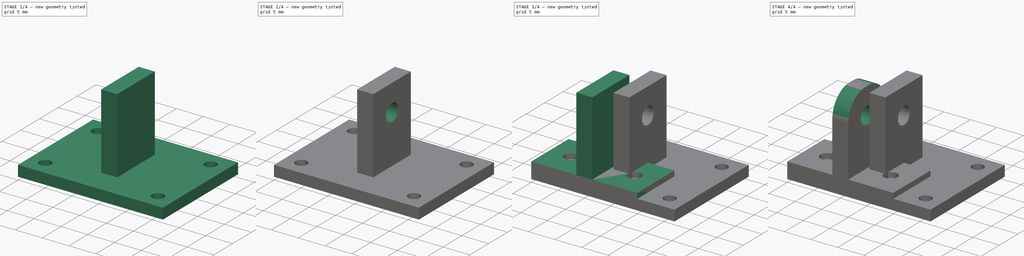
[diagram: build sequence overview — one tinted view per stage of 4, left to right]
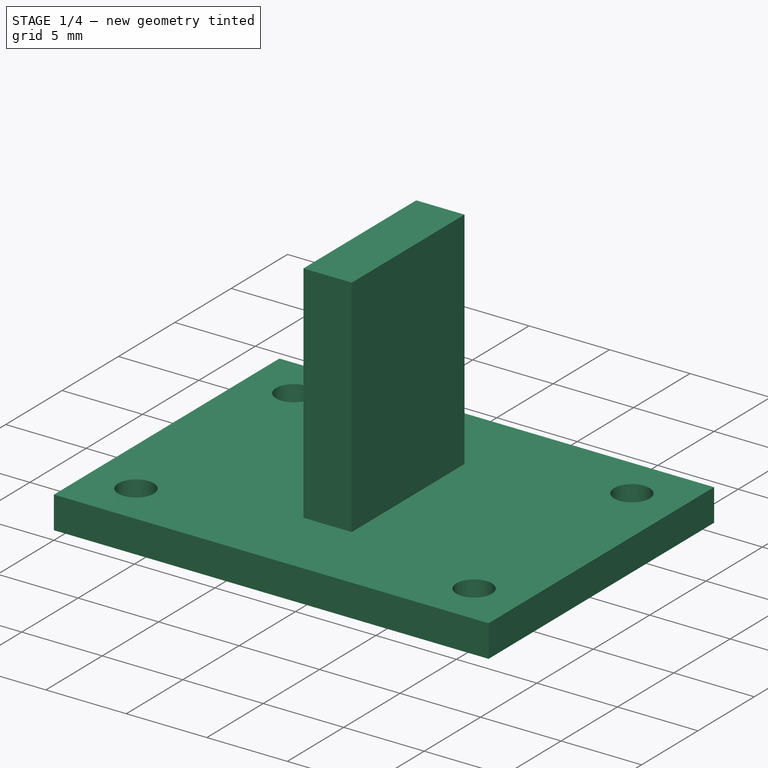
[diagram: stage 1 of 4 — iso view after this stage's code; geometry added in this stage tinted green]
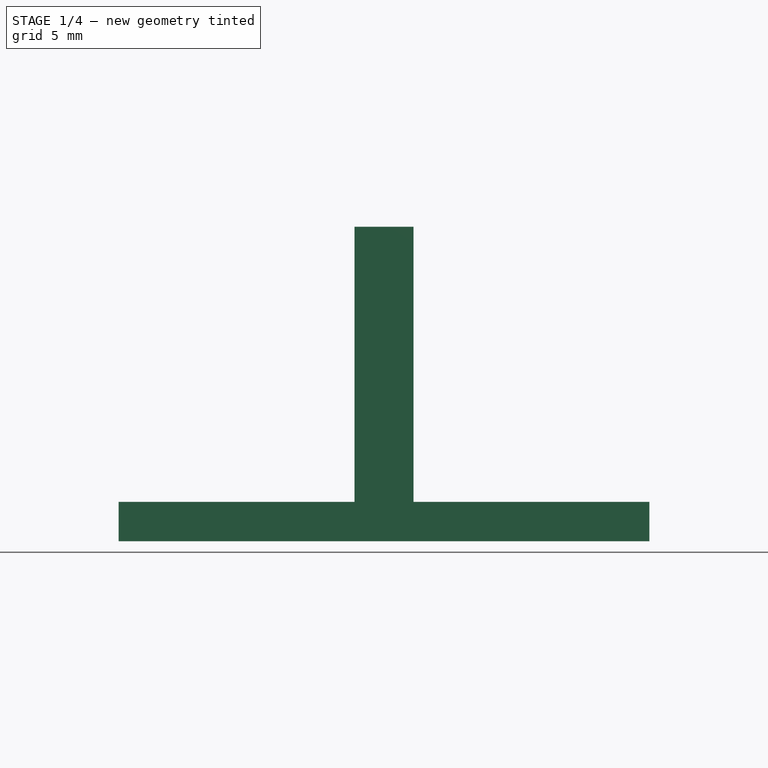
[diagram: stage 1 of 4 — front view after this stage's code; geometry added in this stage tinted green]
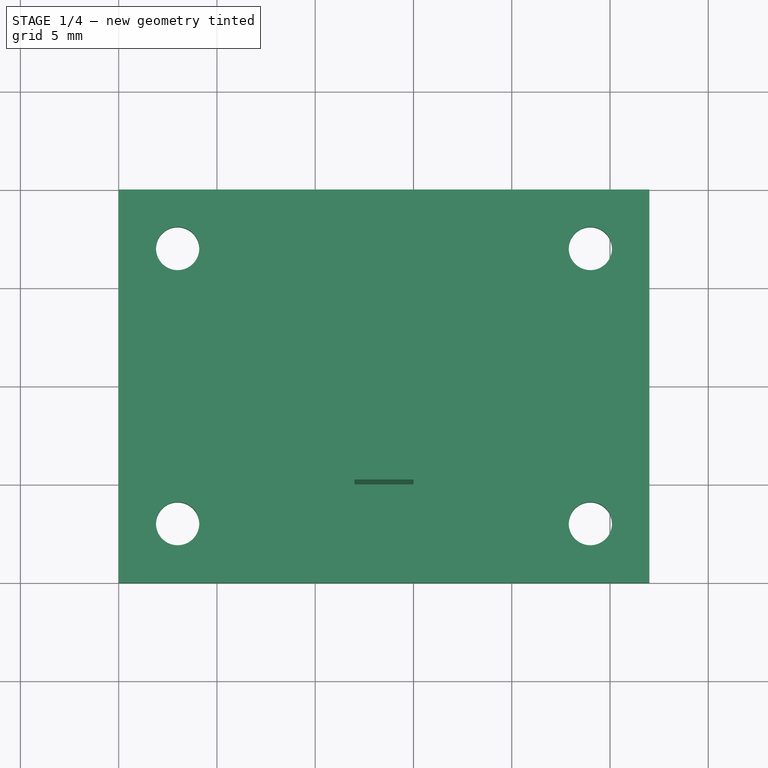
[diagram: stage 1 of 4 — top view after this stage's code; geometry added in this stage tinted green]
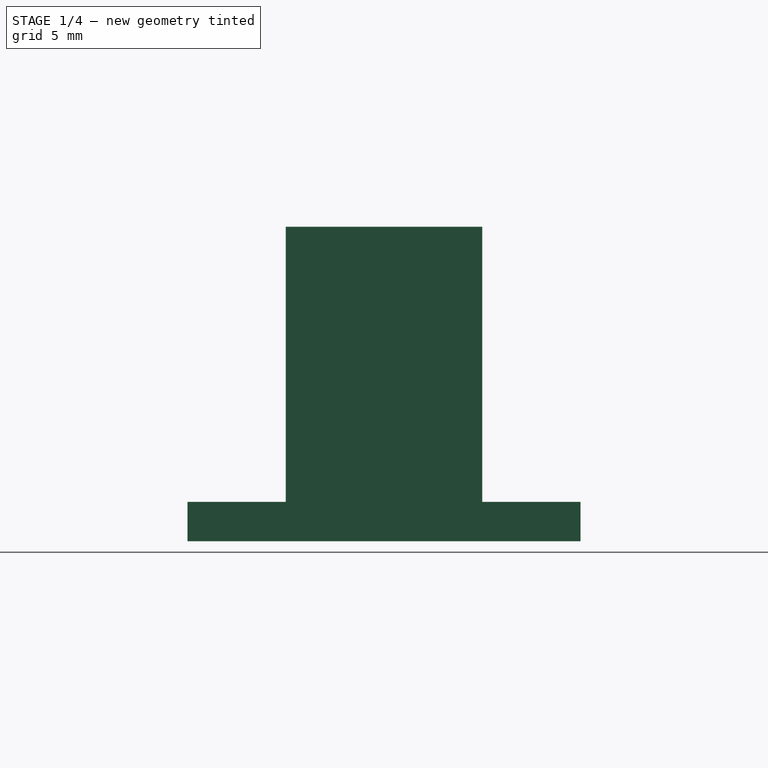
[diagram: stage 1 of 4 — right view after this stage's code; geometry added in this stage tinted green]
FCSTD DOCUMENT  (FreeCAD 0.18R16093 +53 (Git))
Label: pi_room_holder
License: All rights reserved
LicenseURL: http://en.wikipedia.org/wiki/All_rights_reserved
objects: Sketcher::SketchObject×8, PartDesign::Pocket×5, PartDesign::Pad×4, PartDesign::Fillet×3, PartDesign::Body×2
note: 31 computed .brp shape members not serialized (recipe doc carries the construction recipe); baked Part::Feature solids carry a one-line shape summary decoded from their .brp

FEATURE [PartDesign::Body] Body
  Group = -> [Sketch,Pad,Sketch001,Pad001,Sketch002,Pocket,Sketch003,Pocket001,Fillet,Fillet001]
  Origin = -> Origin
  Tip = -> Fillet001
FEATURE [Sketcher::SketchObject] Sketch004
  MapMode = 5
  Support = -> [XY_Plane001]
  sketch-geometry (4):
    g0: LineSegment StartX=0 StartY=20 StartZ=0 EndX=27 EndY=20 EndZ=0
    g1: LineSegment StartX=27 StartY=20 StartZ=0 EndX=27 EndY=0 EndZ=0
    g2: LineSegment StartX=27 StartY=0 StartZ=0 EndX=0 EndY=0 EndZ=0
    g3: LineSegment StartX=0 StartY=0 StartZ=0 EndX=0 EndY=20 EndZ=0
  constraints (11):
    c: Coincident(g0,g1)
    c: Coincident(g1,g2)
    c: Coincident(g2,g3)
    c: Coincident(g3,g0)
    c: Horizontal(g0)
    c: Horizontal(g2)
    c: Vertical(g1)
    c: Vertical(g3)
    c: DistanceX(g0,g0) = 27
    c: DistanceY(g1,g1) = 20
    c: Coincident(g2,g-1)
FEATURE [PartDesign::Pad] Pad002
  Length = 2
  Length2 = 100
  Profile = -> Sketch004
  Type = 0
FEATURE [Sketcher::SketchObject] Sketch005
  ExternalGeometry = -> [Pad002]
  MapMode = 5
  Placement = pos=(0,0,2) rot=(0,0,1;0rad)
  Support = -> [Pad002]
  sketch-geometry (10):
    g0: LineSegment StartX=12 StartY=15 StartZ=0 EndX=15 EndY=15 EndZ=0
    g1: LineSegment StartX=15 StartY=15 StartZ=0 EndX=15 EndY=5 EndZ=0
    g2: LineSegment StartX=15 StartY=5 StartZ=0 EndX=12 EndY=5 EndZ=0
    g3: LineSegment StartX=12 StartY=5 StartZ=0 EndX=12 EndY=15 EndZ=0
    g4: LineSegment [constr] StartX=0 StartY=20 StartZ=0 EndX=27 EndY=20 EndZ=0
    g5: GeomPoint X=13.5 Y=15 Z=0
    g6: GeomPoint X=13.5 Y=20 Z=0
    g7: LineSegment [constr] StartX=0 StartY=20 StartZ=0 EndX=0 EndY=0 EndZ=0
    g8: GeomPoint X=0 Y=10 Z=0
    g9: GeomPoint X=12 Y=10 Z=0
  constraints (20):
    c: Coincident(g0,g1)
    c: Coincident(g1,g2)
    c: Coincident(g2,g3)
    c: Coincident(g3,g0)
    c: Horizontal(g0)
    c: Horizontal(g2)
    c: Vertical(g1)
    c: Vertical(g3)
    c: DistanceX(g0,g0) = 3
    c: Coincident(g4,g-4)
    c: Coincident(g4,g-4)
    c: Symmetric(g0,g0,g5)
    c: Symmetric(g4,g4,g6)
    c: Vertical(g5,g6)
    c: DistanceY(g1,g1) = 10
    c: Coincident(g7,g4)
    c: Coincident(g7,g-1)
    c: Symmetric(g7,g7,g8)
    c: Symmetric(g3,g3,g9)
    c: Horizontal(g9,g8)
FEATURE [PartDesign::Pad] Pad003
  BaseFeature = -> Pad002
  Length = 14
  Length2 = 100
  Profile = -> Sketch005
  Type = 0
FEATURE [Sketcher::SketchObject] Sketch006
  ExternalGeometry = -> [Pad003]
  MapMode = 5
  Placement = pos=(12,0,0) rot=(0.57735,-0.57735,-0.57735;2.0944rad)
  Support = -> [Pad003]
  sketch-geometry (1):
    g0: Circle CenterX=-10 CenterY=11 CenterZ=0 NormalX=0 NormalY=0 NormalZ=1 AngleXU=0 Radius=1.6
  constraints (3):
    c: Diameter(g0) = 3.2
    c: DistanceY(g0,g-3) = 5
    c: DistanceX(g-3,g0) = 5
FEATURE [Sketcher::SketchObject] Sketch007
  ExternalGeometry = -> [Pad003]
  MapMode = 5
  Placement = pos=(0,0,2) rot=(0,0,1;0rad)
  Support = -> [Pad003]
  sketch-geometry (13):
    g0: Circle CenterX=3 CenterY=17 CenterZ=0 NormalX=0 NormalY=0 NormalZ=1 AngleXU=0 Radius=1.1
    g1: Circle CenterX=24 CenterY=17 CenterZ=0 NormalX=0 NormalY=0 NormalZ=1 AngleXU=0 Radius=1.1
    g2: LineSegment [constr] StartX=30 StartY=0 StartZ=0 EndX=30 EndY=0 EndZ=0
    g3: GeomPoint X=30 Y=0 Z=0
    g4: Circle CenterX=3 CenterY=3 CenterZ=0 NormalX=0 NormalY=0 NormalZ=1 AngleXU=0 Radius=1.1
    g5: Circle CenterX=24 CenterY=3 CenterZ=0 NormalX=0 NormalY=0 NormalZ=1 AngleXU=0 Radius=1.1
    g6: LineSegment [constr] StartX=24 StartY=17 StartZ=0 EndX=24 EndY=3 EndZ=0
    g7: LineSegment [constr] StartX=3 StartY=3 StartZ=0 EndX=24 EndY=3 EndZ=0
    g8: GeomPoint X=13.5 Y=3 Z=0
    g9: LineSegment [constr] StartX=27 StartY=-0.0870237 StartZ=0 EndX=0 EndY=-0.0870237 EndZ=0
    g10: GeomPoint X=13.5 Y=-0.0870237 Z=0
    g11: GeomPoint X=27 Y=10 Z=0
    g12: GeomPoint X=24 Y=10 Z=0
  constraints (23):
    c: Horizontal(g1,g0)
    c: DistanceX(g0,g1) = 21
    c: Equal(g0,g1)
    c: Diameter(g0) = 2.2
    c: Equal(g4,g0)
    c: Equal(g5,g0)
    c: Vertical(g4,g0)
    c: Vertical(g1,g5)
    c: Horizontal(g5,g4)
    c: DistanceY(g4,g0) = 14
    c: Coincident(g7,g4)
    c: Coincident(g7,g5)
    c: Symmetric(g7,g7,g8)
    c: PointOnObject(g9,g-4)
    c: PointOnObject(g9,g-2)
    c: Horizontal(g9)
    c: Symmetric(g9,g9,g10)
    c: Vertical(g10,g8)
    c: Symmetric(g-4,g-4,g11)
    c: Coincident(g1,g6)
    c: Coincident(g6,g5)
    c: Symmetric(g6,g6,g12)
    c: Horizontal(g12,g11)
FEATURE [PartDesign::Pocket] Pocket002
  BaseFeature = -> Pad003
  Length = 3
  Length2 = 100
  Profile = -> Sketch007
  Type = 0
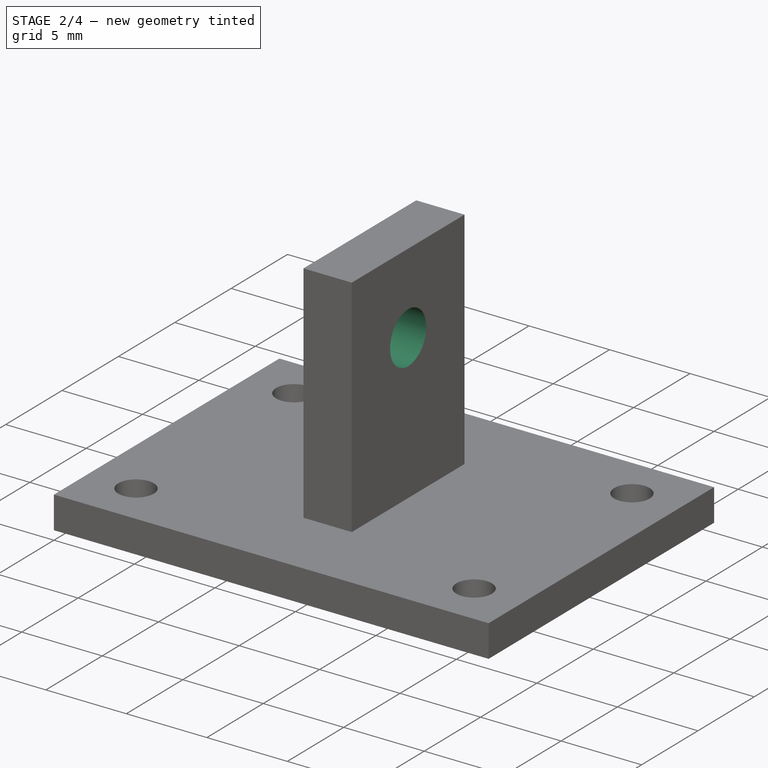
[diagram: stage 2 of 4 — iso view after this stage's code; geometry added in this stage tinted green]
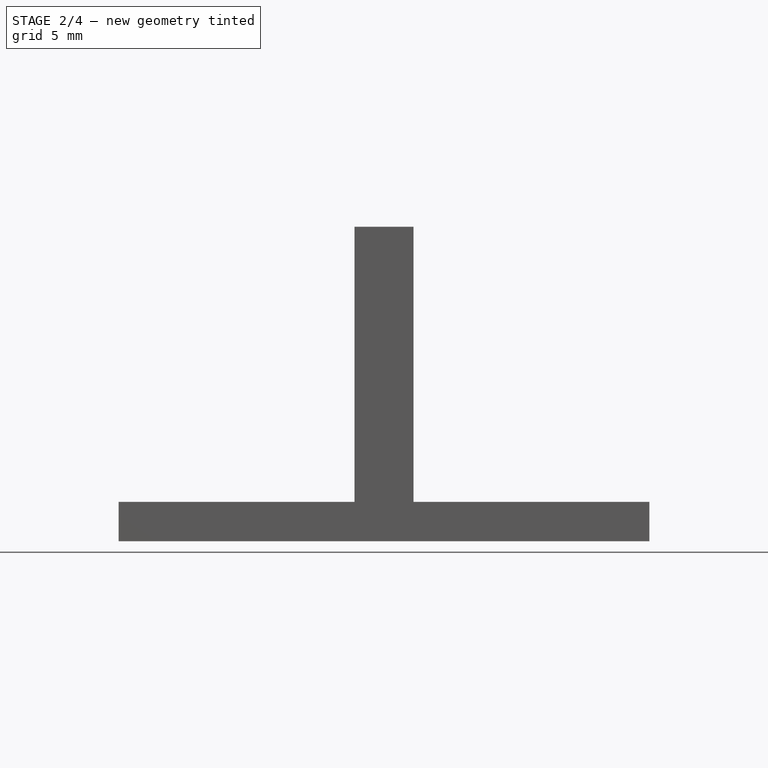
[diagram: stage 2 of 4 — front view after this stage's code; geometry added in this stage tinted green]
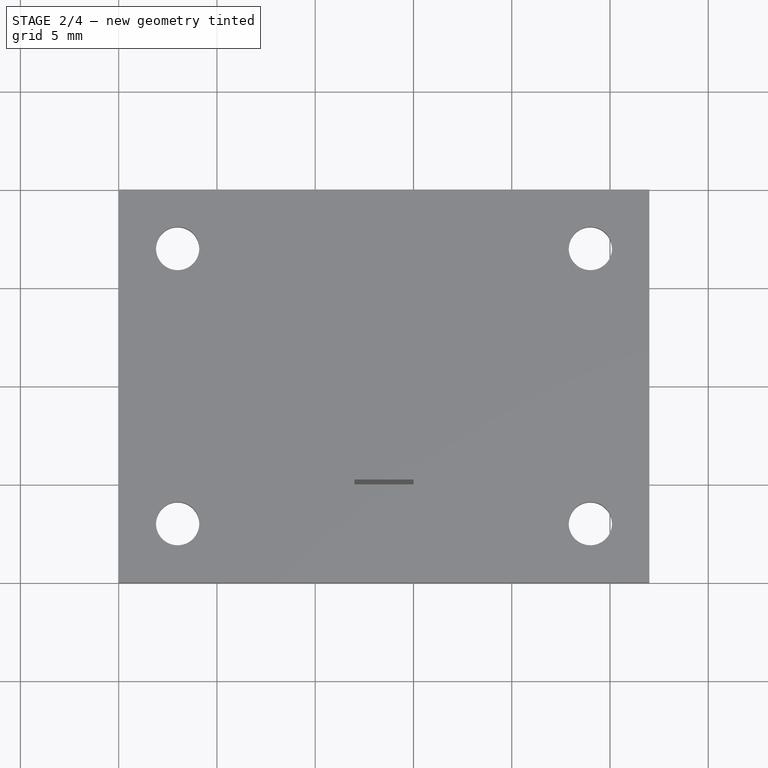
[diagram: stage 2 of 4 — top view after this stage's code; geometry added in this stage tinted green]
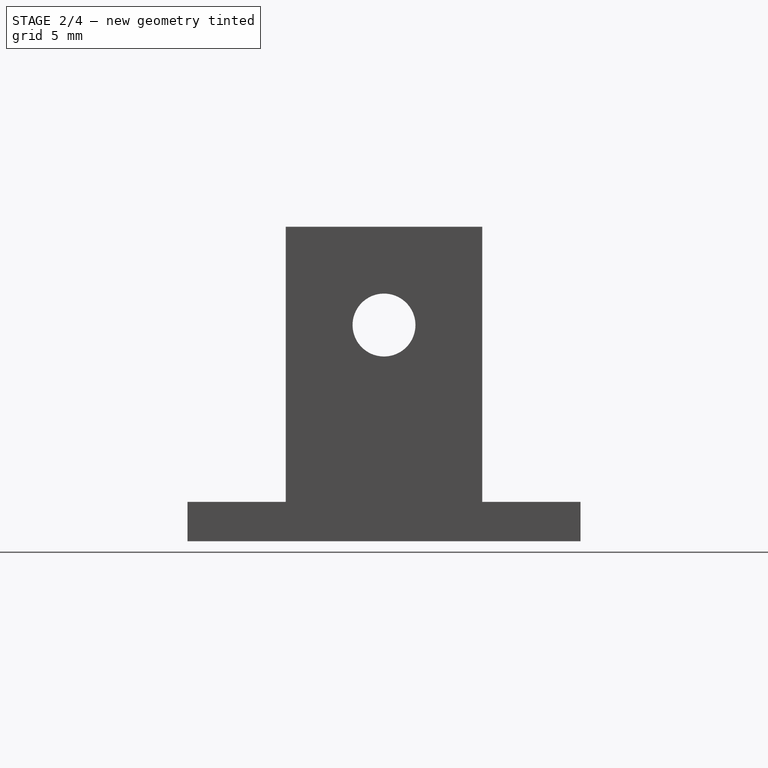
[diagram: stage 2 of 4 — right view after this stage's code; geometry added in this stage tinted green]
FEATURE [PartDesign::Pocket] Pocket003
  BaseFeature = -> Pocket002
  Length = 3
  Length2 = 100
  Profile = -> Sketch006
  Type = 0
FEATURE [PartDesign::Pocket] Pocket004
  BaseFeature = -> Pocket003
  Length = 3
  Length2 = 100
  Profile = -> Sketch007
  Type = 0
FEATURE [PartDesign::Fillet] Fillet002
  Base = -> Pocket003 [Edge31,Edge38]
  BaseFeature = -> Pocket003
  Radius = 4.5
FEATURE [PartDesign::Body] Body001  label="Body2"
  Group = -> [Sketch004,Pad002,Sketch005,Pad003,Sketch007,Pocket002,Sketch006,Pocket003,Pocket004,Fillet002]
  Origin = -> Origin001
  Tip = -> Fillet002
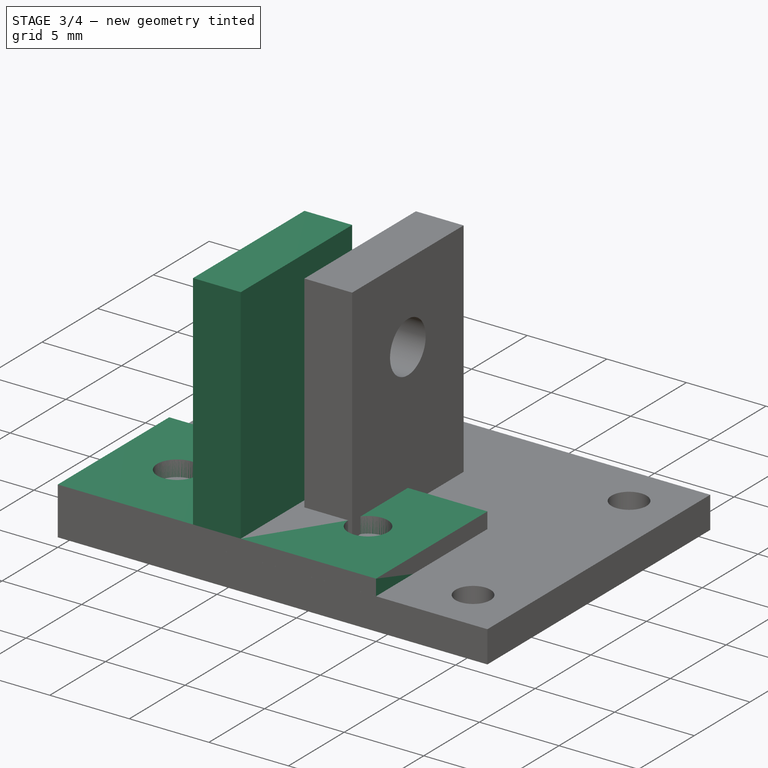
[diagram: stage 3 of 4 — iso view after this stage's code; geometry added in this stage tinted green]
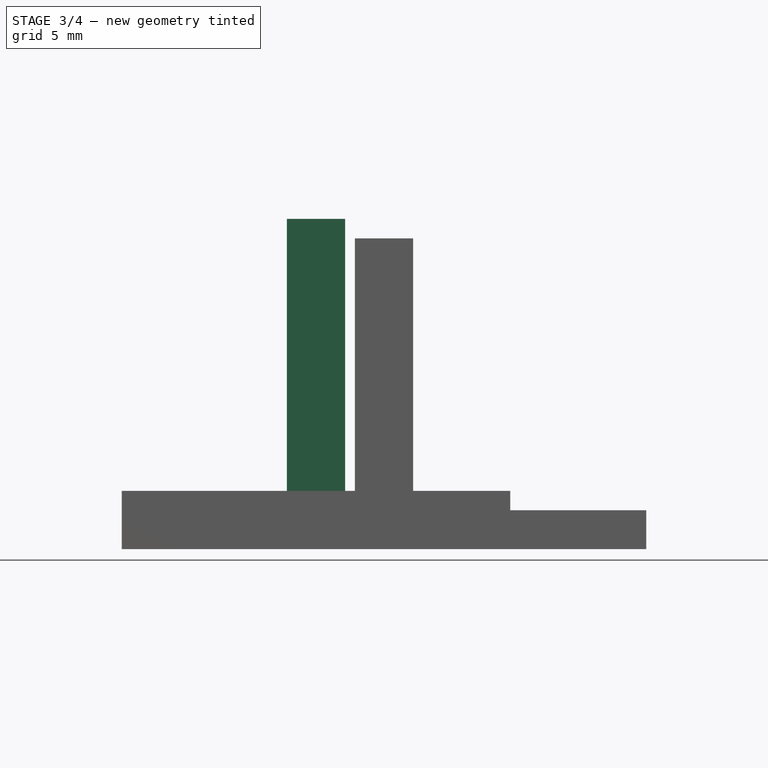
[diagram: stage 3 of 4 — front view after this stage's code; geometry added in this stage tinted green]
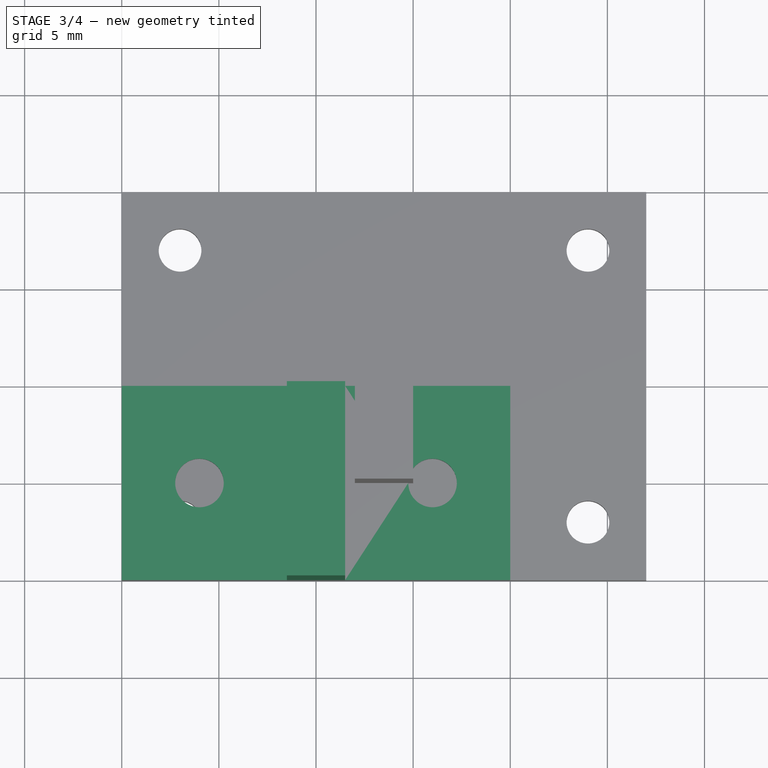
[diagram: stage 3 of 4 — top view after this stage's code; geometry added in this stage tinted green]
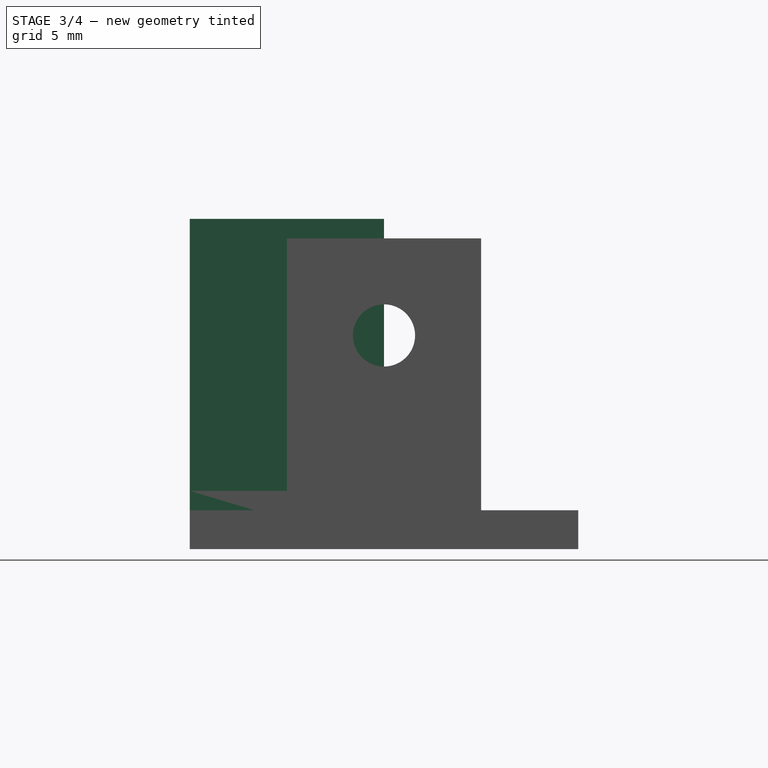
[diagram: stage 3 of 4 — right view after this stage's code; geometry added in this stage tinted green]
FEATURE [Sketcher::SketchObject] Sketch
  MapMode = 5
  Support = -> [XY_Plane]
  sketch-geometry (4):
    g0: LineSegment StartX=0 StartY=10 StartZ=0 EndX=20 EndY=10 EndZ=0
    g1: LineSegment StartX=20 StartY=10 StartZ=0 EndX=20 EndY=0 EndZ=0
    g2: LineSegment StartX=20 StartY=0 StartZ=0 EndX=0 EndY=0 EndZ=0
    g3: LineSegment StartX=0 StartY=0 StartZ=0 EndX=0 EndY=10 EndZ=0
  constraints (11):
    c: Coincident(g0,g1)
    c: Coincident(g1,g2)
    c: Coincident(g2,g3)
    c: Coincident(g3,g0)
    c: Horizontal(g0)
    c: Horizontal(g2)
    c: Vertical(g1)
    c: Vertical(g3)
    c: DistanceX(g0,g0) = 20
    c: DistanceY(g1,g1) = 10
    c: Coincident(g2,g-1)
FEATURE [PartDesign::Pad] Pad
  Length = 3
  Length2 = 100
  Profile = -> Sketch
  Type = 0
FEATURE [Sketcher::SketchObject] Sketch001
  ExternalGeometry = -> [Pad]
  MapMode = 5
  Placement = pos=(0,0,3) rot=(0,0,1;0rad)
  Support = -> [Pad]
  sketch-geometry (7):
    g0: LineSegment StartX=8.5 StartY=10 StartZ=0 EndX=11.5 EndY=10 EndZ=0
    g1: LineSegment StartX=11.5 StartY=10 StartZ=0 EndX=11.5 EndY=0 EndZ=0
    g2: LineSegment StartX=11.5 StartY=0 StartZ=0 EndX=8.5 EndY=0 EndZ=0
    g3: LineSegment StartX=8.5 StartY=0 StartZ=0 EndX=8.5 EndY=10 EndZ=0
    g4: LineSegment [constr] StartX=0 StartY=10 StartZ=0 EndX=20 EndY=10 EndZ=0
    g5: GeomPoint X=10 Y=10 Z=0
    g6: GeomPoint X=10 Y=10 Z=0
  constraints (15):
    c: Coincident(g0,g1)
    c: Coincident(g1,g2)
    c: Coincident(g2,g3)
    c: Coincident(g3,g0)
    c: Horizontal(g0)
    c: Horizontal(g2)
    c: Vertical(g1)
    c: Vertical(g3)
    c: DistanceX(g0,g0) = 3
    c: Coincident(g4,g-4)
    c: Coincident(g4,g-4)
    c: Symmetric(g4,g4,g5)
    c: Symmetric(g0,g0,g6)
    c: Coincident(g6,g5)
    c: PointOnObject(g2,g-3)
FEATURE [PartDesign::Pad] Pad001
  BaseFeature = -> Pad
  Length = 14
  Length2 = 100
  Profile = -> Sketch001
  Type = 0
FEATURE [Sketcher::SketchObject] Sketch002
  ExternalGeometry = -> [Pad001]
  MapMode = 5
  Placement = pos=(0,0,3) rot=(0,0,1;0rad)
  Support = -> [Pad001]
  sketch-geometry (9):
    g0: Circle CenterX=4 CenterY=5 CenterZ=0 NormalX=0 NormalY=0 NormalZ=1 AngleXU=0 Radius=1.25
    g1: Circle CenterX=16 CenterY=5 CenterZ=0 NormalX=0 NormalY=0 NormalZ=1 AngleXU=0 Radius=1.25
    g2: LineSegment [constr] StartX=20 StartY=10 StartZ=0 EndX=20 EndY=0 EndZ=0
    g3: GeomPoint X=20 Y=5 Z=0
    g4: LineSegment [constr] StartX=20 StartY=5 StartZ=0 EndX=0 EndY=5 EndZ=0
    g5: LineSegment [constr] StartX=20 StartY=10 StartZ=0 EndX=0 EndY=10 EndZ=0
    g6: GeomPoint X=10 Y=10 Z=0
    g7: LineSegment [constr] StartX=10 StartY=10 StartZ=0 EndX=10 EndY=0.248112 EndZ=0
    g8: GeomPoint X=10 Y=5 Z=0
  constraints (18):
    c: DistanceX(g0,g1) = 12
    c: Diameter(g0) = 2.5
    c: Equal(g0,g1)
    c: Horizontal(g0,g1)
    c: Coincident(g2,g-3)
    c: Coincident(g2,g-3)
    c: Symmetric(g2,g2,g3)
    c: Horizontal(g4)
    c: PointOnObject(g0,g4)
    c: Coincident(g5,g-4)
    c: Coincident(g5,g2)
    c: Symmetric(g5,g5,g6)
    c: Coincident(g4,g3)
    c: PointOnObject(g4,g-4)
    c: Vertical(g7)
    c: Coincident(g6,g7)
    c: Symmetric(g4,g4,g8)
    c: DistanceX(g8,g1) = 6
FEATURE [PartDesign::Pocket] Pocket
  BaseFeature = -> Pad001
  Length = 3
  Length2 = 100
  Profile = -> Sketch002
  Type = 0
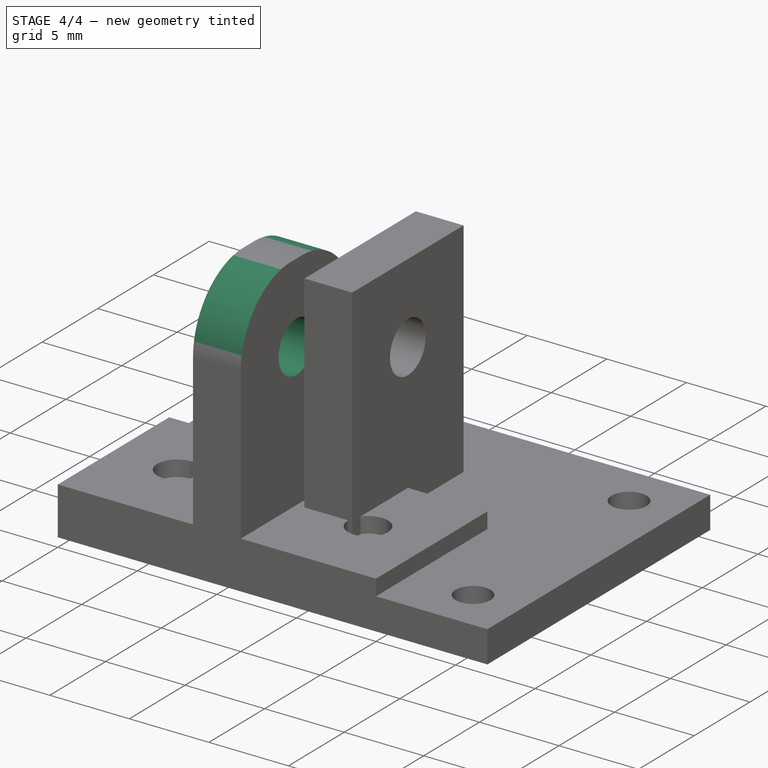
[diagram: stage 4 of 4 — iso view after this stage's code; geometry added in this stage tinted green]
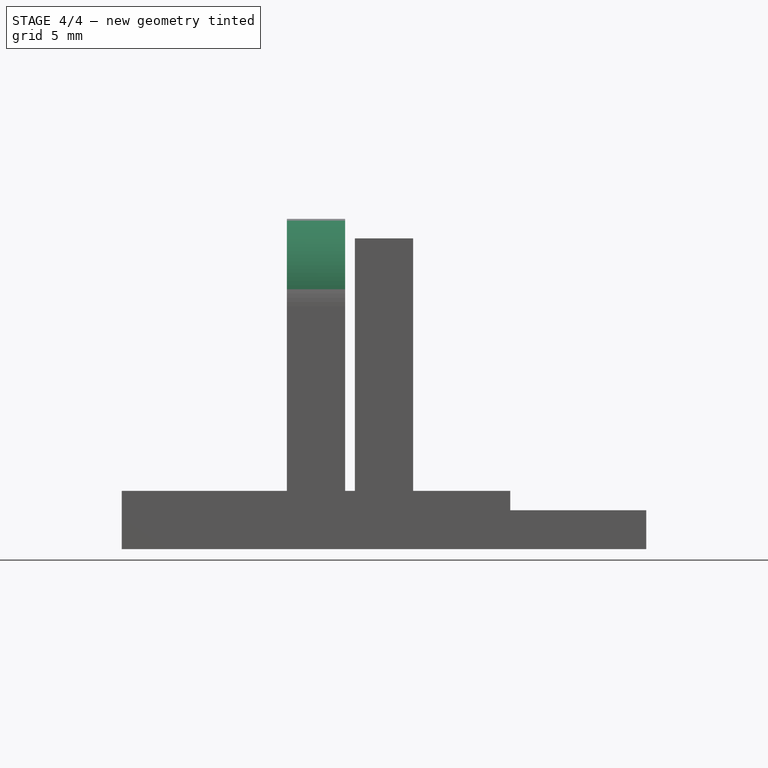
[diagram: stage 4 of 4 — front view after this stage's code; geometry added in this stage tinted green]
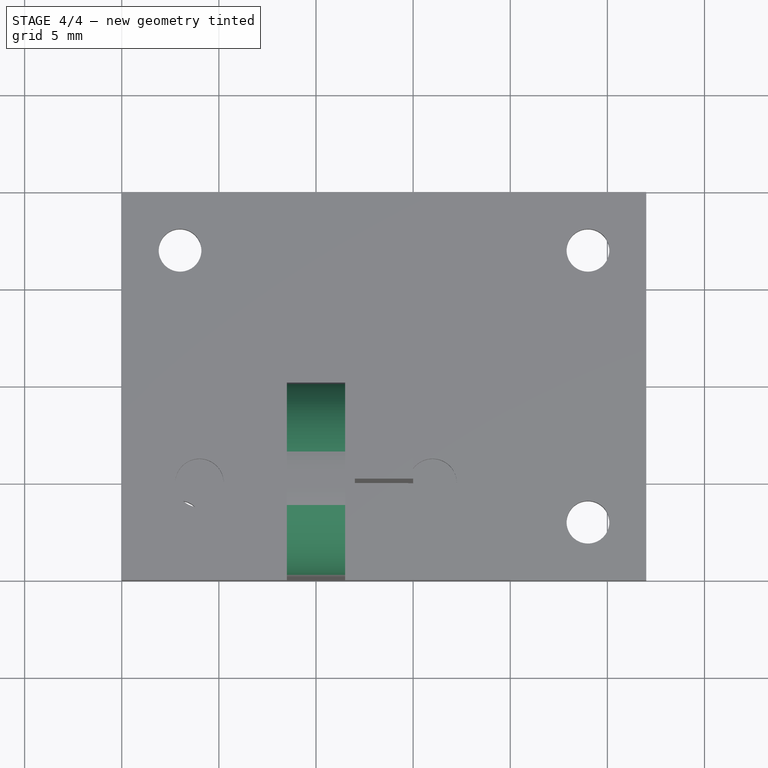
[diagram: stage 4 of 4 — top view after this stage's code; geometry added in this stage tinted green]
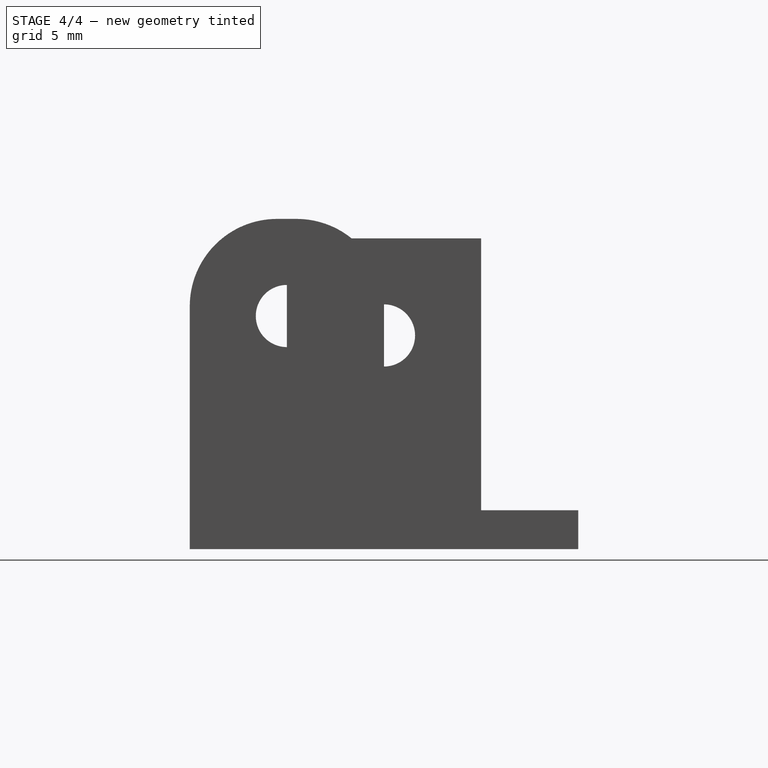
[diagram: stage 4 of 4 — right view after this stage's code; geometry added in this stage tinted green]
FEATURE [Sketcher::SketchObject] Sketch003
  ExternalGeometry = -> [Pad001]
  MapMode = 5
  Placement = pos=(11.5,0,0) rot=(0.57735,0.57735,0.57735;2.0944rad)
  Support = -> [Pad001]
  sketch-geometry (1):
    g0: Circle CenterX=5 CenterY=12 CenterZ=0 NormalX=0 NormalY=0 NormalZ=1 AngleXU=0 Radius=1.6
  constraints (3):
    c: Diameter(g0) = 3.2
    c: DistanceX(g0,g-3) = 5
    c: DistanceY(g0,g-3) = 5
FEATURE [PartDesign::Pocket] Pocket001
  BaseFeature = -> Pocket
  Length = 3
  Length2 = 100
  Profile = -> Sketch003
  Type = 0
FEATURE [PartDesign::Fillet] Fillet
  Base = -> Pocket001 [Edge21]
  BaseFeature = -> Pocket001
  Radius = 4.5
FEATURE [PartDesign::Fillet] Fillet001
  Base = -> Fillet [Edge21]
  BaseFeature = -> Fillet
  Radius = 4.5
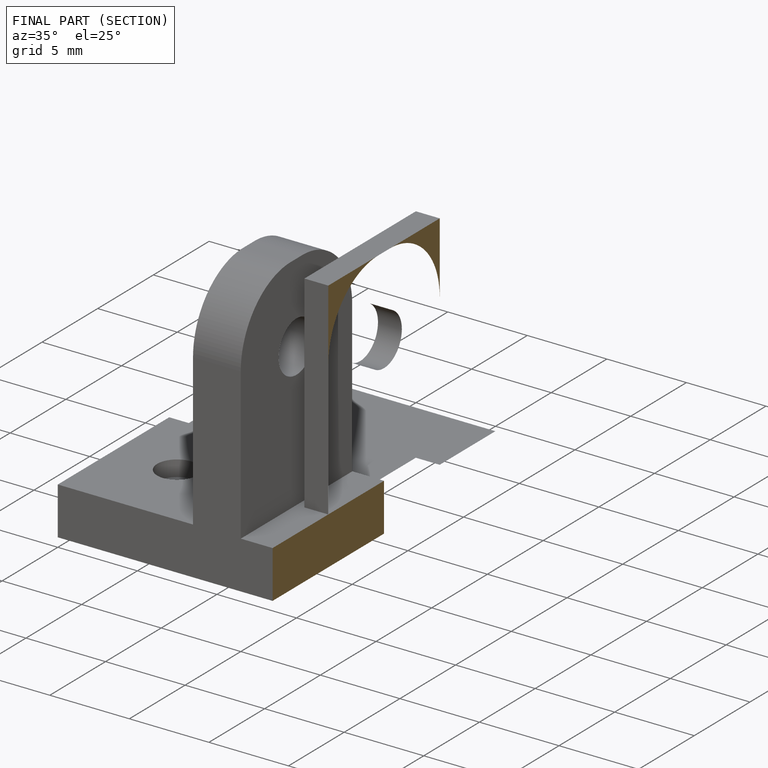
[diagram: finished part — half-section view (interior)]
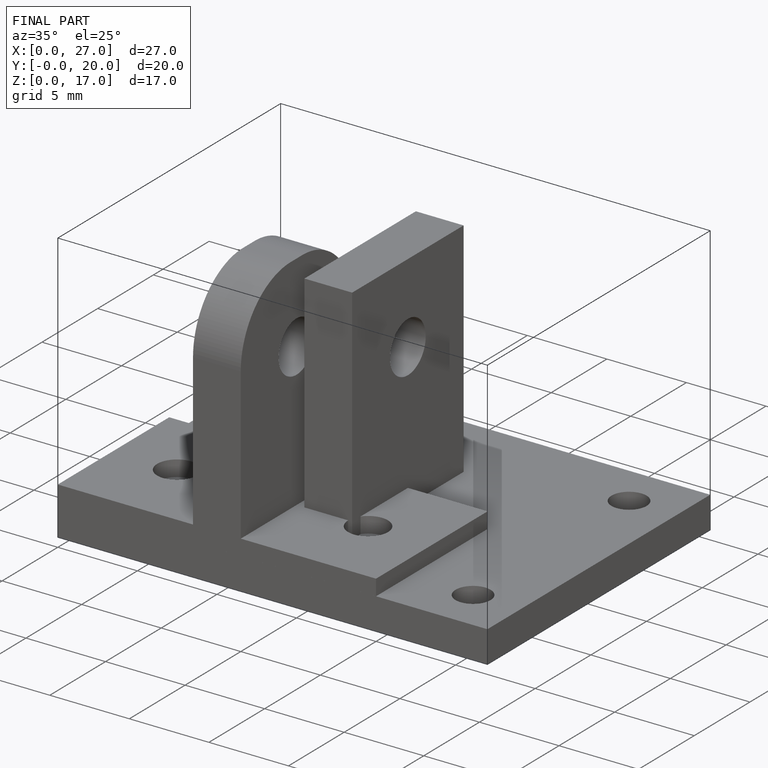
[diagram: finished part — iso view with bounding-box wireframe]
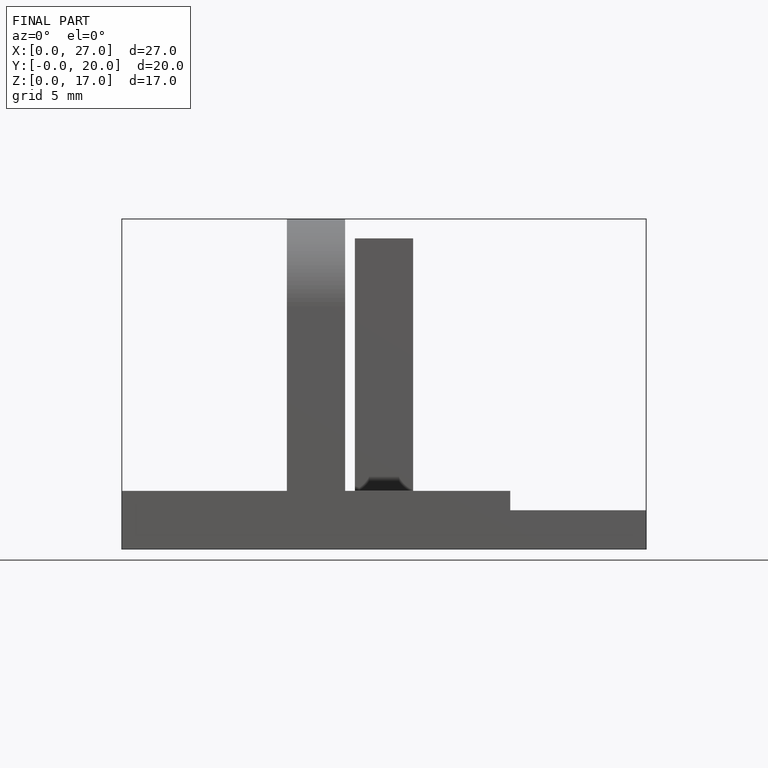
[diagram: finished part — front view with bounding-box wireframe]
